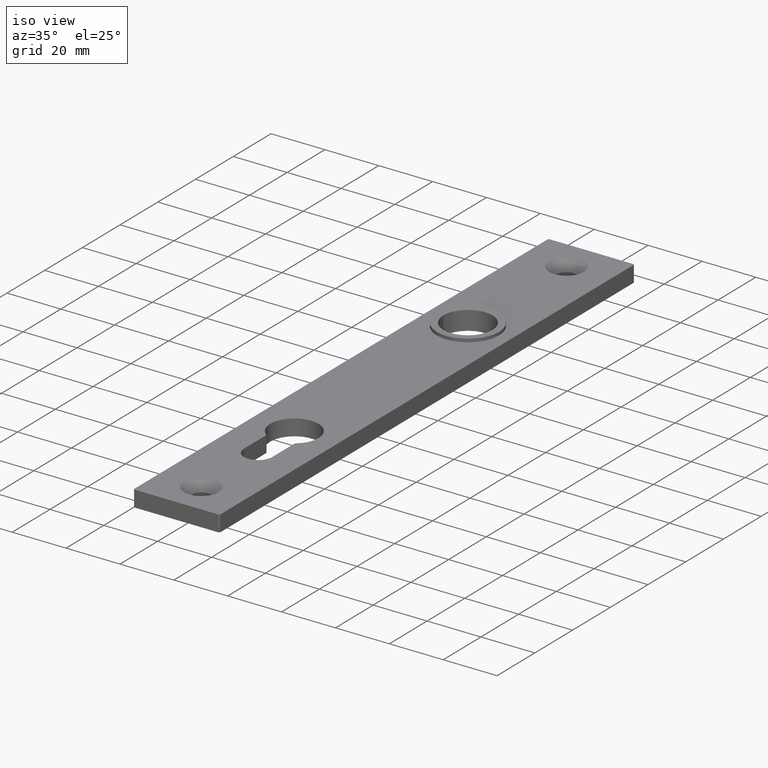
[diagram: clean part render]
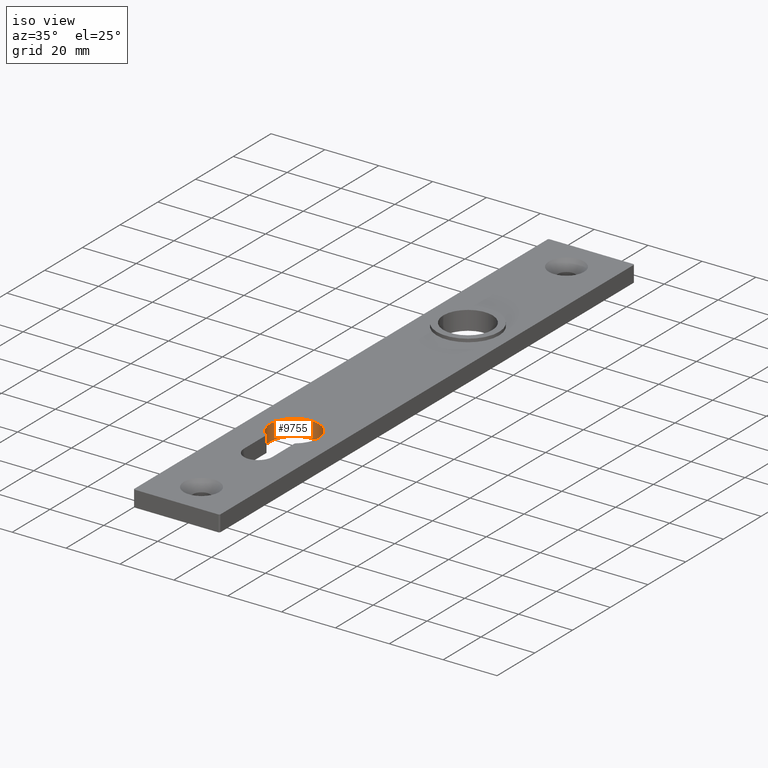
[diagram: same view with one face highlighted and labeled with its STEP entity id]
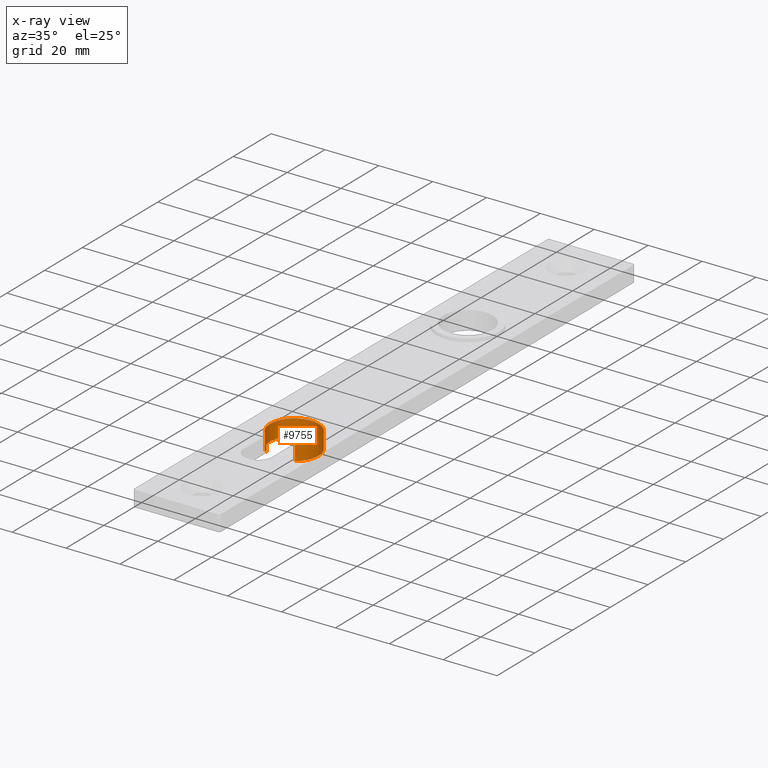
[diagram: x-ray of the same camera — body ghosted, the highlighted face saturated]
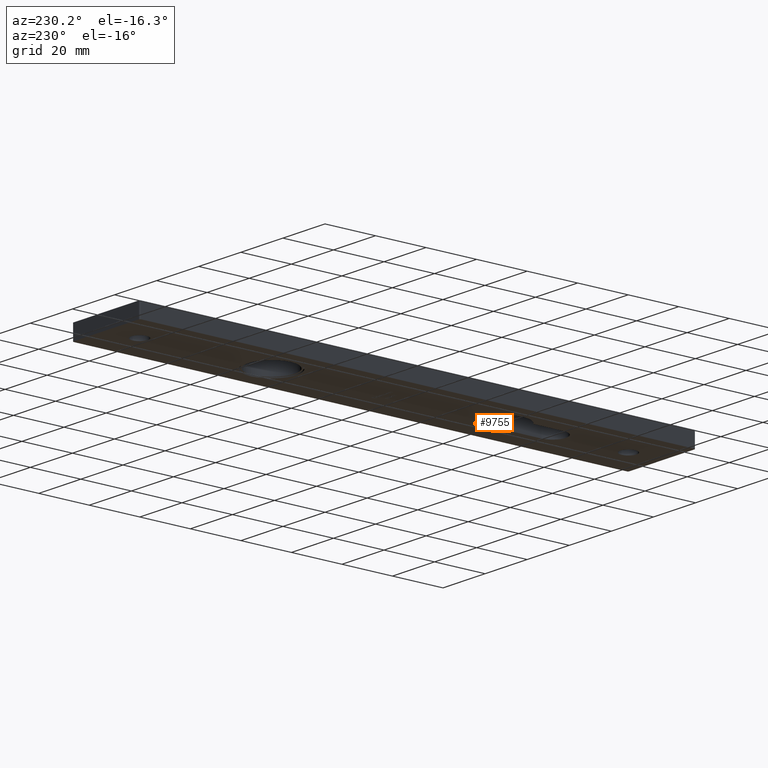
[diagram: same view with one face highlighted and labeled with its STEP entity id]
A machine part, iso view. The second image highlights one B-rep face of the part: STEP entity #9755.
The next image is the same camera in x-ray: the body ghosted, the highlighted face saturated — about 0% of this face is hidden behind the body in this view.
A second angle (auxiliary view) of the same face is appended — the face is thin or edge-on in the first view.
In plain terms, the highlighted cylindrical surface (edge-blend (fillet) strip) has radius 9 mm, axis along (-0, -0, -1).
Its self-contained STEP definition (entity closure, byte-faithful):
#249 = DIRECTION ( 'NONE',  ( -0.0000000000000000000, -0.0000000000000000000, -1.000000000000000000 ) ) ;
#280 = VERTEX_POINT ( 'NONE', #6853 ) ;
#417 = DIRECTION ( 'NONE',  ( -1.000000000000000000, 0.0000000000000000000, 0.0000000000000000000 ) ) ;
#749 = AXIS2_PLACEMENT_3D ( 'NONE', #10041, #2877, #7421 ) ;
#1140 = LINE ( 'NONE', #5275, #2289 ) ;
#1303 = EDGE_CURVE ( 'NONE', #280, #3575, #6517, .T. ) ;
#1318 = CARTESIAN_POINT ( 'NONE',  ( 0.0000000000000000000, -47.50000000000001400, 0.0000000000000000000 ) ) ;
#1473 = VERTEX_POINT ( 'NONE', #11115 ) ;
#1547 = ORIENTED_EDGE ( 'NONE', *, *, #4351, .T. ) ;
#1942 = EDGE_LOOP ( 'NONE', ( #3966, #10872, #10604, #1547 ) ) ;
#2289 = VECTOR ( 'NONE', #3427, 1000.000000000000000 ) ;
#2580 = AXIS2_PLACEMENT_3D ( 'NONE', #5559, #249, #417 ) ;
#2877 = DIRECTION ( 'NONE',  ( 0.0000000000000000000, 0.0000000000000000000, 1.000000000000000000 ) ) ;
#3427 = DIRECTION ( 'NONE',  ( -0.0000000000000000000, -0.0000000000000000000, -1.000000000000000000 ) ) ;
#3575 = VERTEX_POINT ( 'NONE', #8942 ) ;
#3739 = LINE ( 'NONE', #10066, #9498 ) ;
#3936 = DIRECTION ( 'NONE',  ( 0.0000000000000000000, 0.0000000000000000000, 1.000000000000000000 ) ) ;
#3966 = ORIENTED_EDGE ( 'NONE', *, *, #9805, .F. ) ;
#4351 = EDGE_CURVE ( 'NONE', #3575, #1473, #3739, .T. ) ;
#5275 = CARTESIAN_POINT ( 'NONE',  ( 5.250000000000000000, -54.81009575860673500, 6.000000000000000000 ) ) ;
#5559 = CARTESIAN_POINT ( 'NONE',  ( 0.0000000000000000000, -47.50000000000001400, 6.000000000000000000 ) ) ;
#6517 = CIRCLE ( 'NONE', #749, 9.000000000000000000 ) ;
#6853 = CARTESIAN_POINT ( 'NONE',  ( 5.250000000000000000, -54.81009575860673500, 6.000000000000000000 ) ) ;
#7421 = DIRECTION ( 'NONE',  ( 1.000000000000000000, 0.0000000000000000000, 0.0000000000000000000 ) ) ;
#8203 = AXIS2_PLACEMENT_3D ( 'NONE', #1318, #3936, #10235 ) ;
#8749 = CYLINDRICAL_SURFACE ( 'NONE', #2580, 9.000000000000000000 ) ;
#8942 = CARTESIAN_POINT ( 'NONE',  ( -5.250000000000000900, -54.81009575860673500, 6.000000000000000000 ) ) ;
#9498 = VECTOR ( 'NONE', #11070, 1000.000000000000000 ) ;
#9726 = CIRCLE ( 'NONE', #8203, 9.000000000000000000 ) ;
#9755 = ADVANCED_FACE ( 'NONE', ( #11742 ), #8749, .F. ) ;
#9805 = EDGE_CURVE ( 'NONE', #11578, #1473, #9726, .T. ) ;
#10041 = CARTESIAN_POINT ( 'NONE',  ( 0.0000000000000000000, -47.50000000000001400, 6.000000000000000000 ) ) ;
#10066 = CARTESIAN_POINT ( 'NONE',  ( -5.250000000000000900, -54.81009575860673500, 6.000000000000000000 ) ) ;
#10235 = DIRECTION ( 'NONE',  ( 1.000000000000000000, 0.0000000000000000000, 0.0000000000000000000 ) ) ;
#10604 = ORIENTED_EDGE ( 'NONE', *, *, #1303, .T. ) ;
#10616 = CARTESIAN_POINT ( 'NONE',  ( 5.250000000000000000, -54.81009575860673500, 0.0000000000000000000 ) ) ;
#10872 = ORIENTED_EDGE ( 'NONE', *, *, #11551, .F. ) ;
#11070 = DIRECTION ( 'NONE',  ( -0.0000000000000000000, -0.0000000000000000000, -1.000000000000000000 ) ) ;
#11115 = CARTESIAN_POINT ( 'NONE',  ( -5.250000000000000900, -54.81009575860673500, 0.0000000000000000000 ) ) ;
#11551 = EDGE_CURVE ( 'NONE', #280, #11578, #1140, .T. ) ;
#11578 = VERTEX_POINT ( 'NONE', #10616 ) ;
#11742 = FACE_OUTER_BOUND ( 'NONE', #1942, .T. ) ;